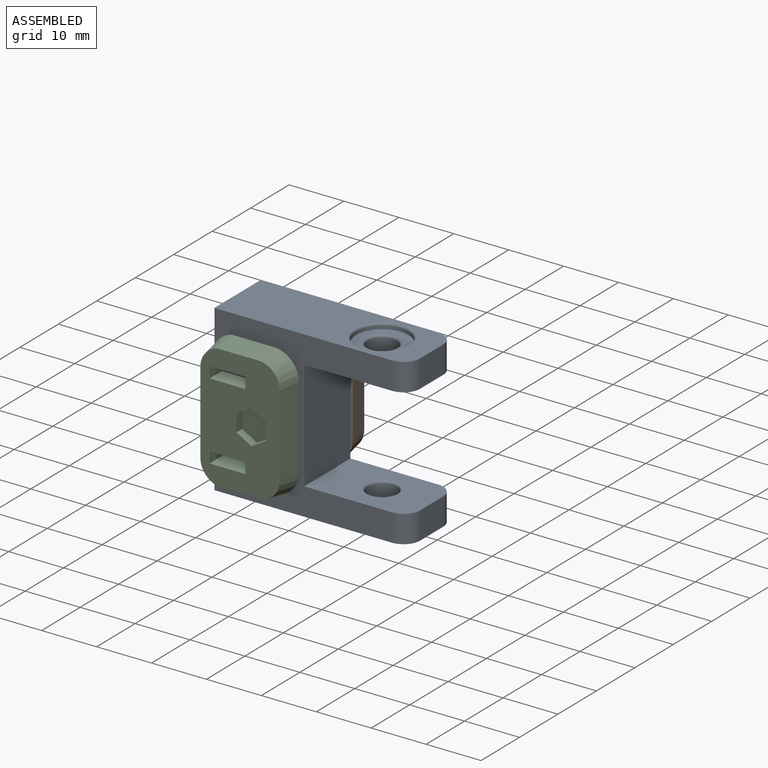
[diagram: assembled view]
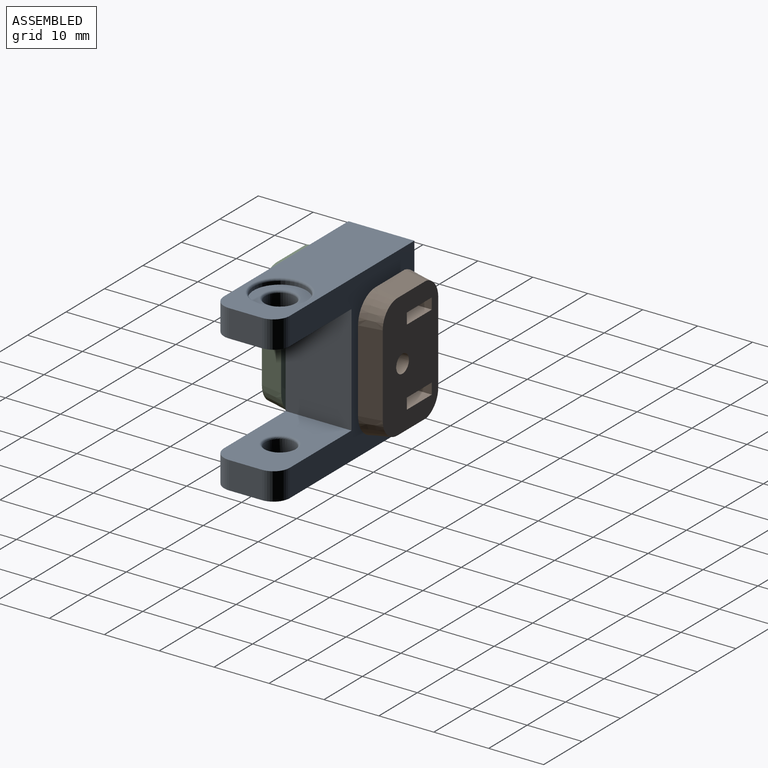
[diagram: assembled view, second angle]
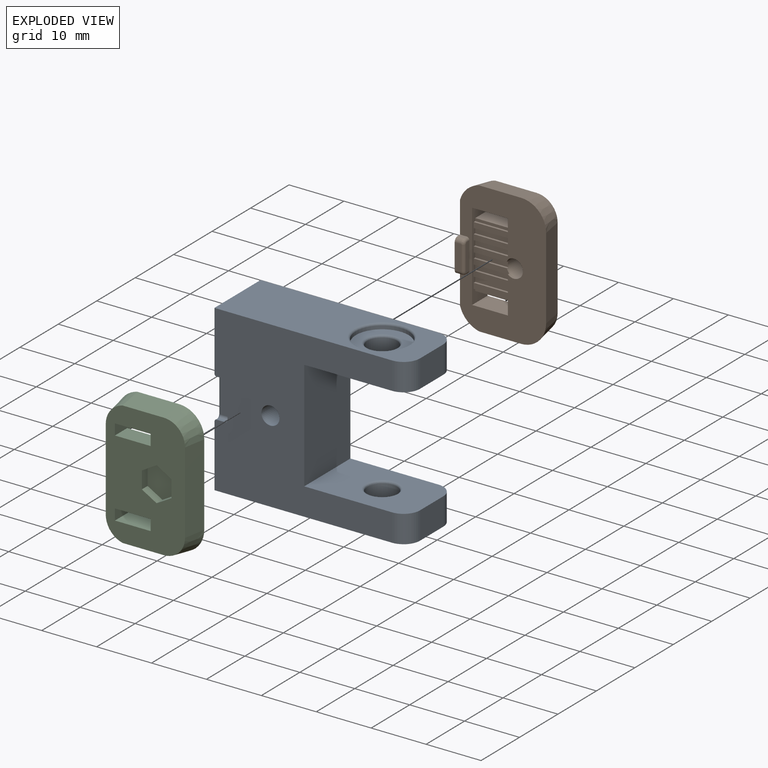
[diagram: exploded view]
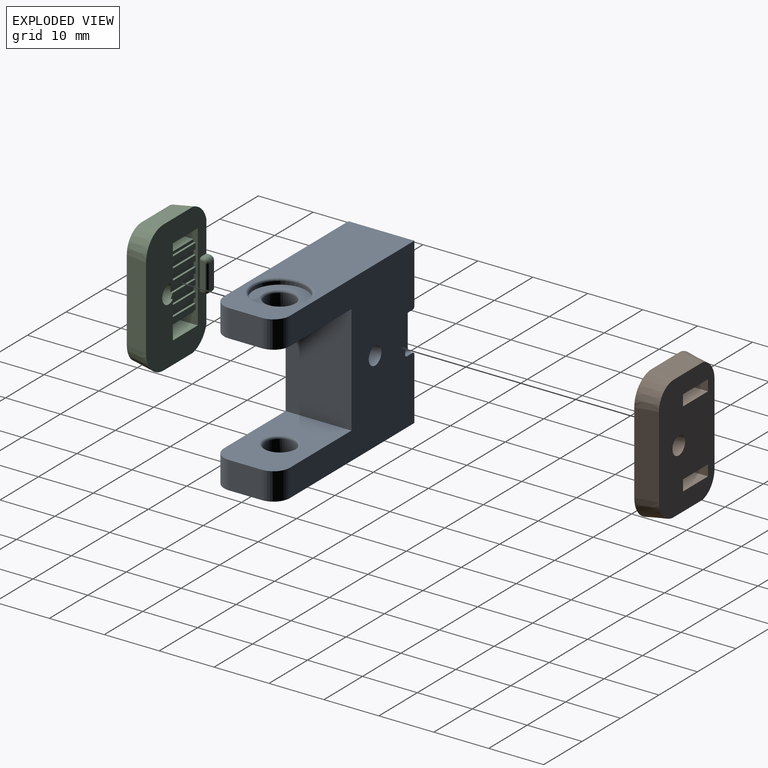
[diagram: exploded view, second angle]
ASSEMBLY  parts=3 mates=2
PART A: 59 faces, bbox 30x35.4x12 mm
  f0: plane 19x12mm, normal (1,0,0), area 193.9mm2, adj f1,f9,f18,f21,f39,f40,f58
  f1: plane 20x12mm, normal (0,-1,0), area 240mm2, adj f0,f3,f21,f40
  f2: plane 35.35x12mm, normal (-1,0,0), area 335.4mm2, adj f7,f12,f18,f21,f39,f40,f58
  f3: plane 19x12mm, normal (-1,0,0), area 193.9mm2, adj f1,f10,f17,f21,f38,f40,f57
  f4: plane 9.6x9.6mm, normal (1,0,0), area 42.2mm2, adj f6,f13
  f5: torus R=5.2mm, axis (-1,0,0), area 19.5mm2, adj f13,f20
  f6: torus R=3.1mm, axis (1,0,0), area 11.2mm2, adj f4,f16
  f7: torus R=5.2mm, axis (1,0,0), area 18.8mm2, adj f2,f15
  f8: torus R=3.1mm, axis (-1,0,0), area 11.2mm2, adj f14,f19
  f9: torus R=3.1mm, axis (-1,0,0), area 11.2mm2, adj f0,f19
  f10: torus R=3.1mm, axis (-1,0,0), area 11.2mm2, adj f3,f16
  f11: cylinder r=1.65mm len=12mm, axis (0,0,1), area 124.4mm2, adj f21,f40
  f12: plane 30x12mm, normal (0,1,0), area 338.6mm2, adj f2,f20,f21,f33,f34,f35,f36,f37
  f13: cylinder r=4.8mm len=9.6mm, axis (-1,0,0), area 18.1mm2, adj f4,f5
  f14: plane 9.6x9.6mm, normal (-1,0,0), area 42.2mm2, adj f8,f15
  f15: cylinder r=4.8mm len=9.6mm, axis (1,0,0), area 18.1mm2, adj f7,f14
  f16: cylinder r=2.7mm len=5.4mm, axis (-1,0,0), area 54.3mm2, adj f6,f10
  f17: plane 6x5mm, normal (0,-1,0), area 30mm2, adj f3,f20,f38,f57
  f18: plane 6x5mm, normal (0,-1,0), area 30mm2, adj f0,f2,f39,f58
  f19: cylinder r=2.7mm len=5.4mm, axis (-1,0,0), area 54.3mm2, adj f8,f9
  f20: plane 35.35x12mm, normal (1,0,0), area 335.4mm2, adj f5,f12,f17,f21,f38,f40,f57
  f21: plane 32.35x30mm, normal (0,0,-1), area 625mm2, adj f0,f1,f2,f3,f11,f12,f20,f23
  f22: plane 6.1x1.5mm, normal (0,0,-1), area 9.1mm2, adj f24,f25,f29,f35
  f23: plane 1.5x0.5mm, normal (1,0,0), area 0.8mm2, adj f21,f25,f28,f33
  f24: cylinder r=0.5mm len=1.5mm, axis (0,1,0), area 1.2mm2, adj f22,f26,f32,f36
  f25: cylinder r=0.5mm len=1.5mm, axis (0,-1,0), area 1.2mm2, adj f22,f23,f31,f34
  f26: plane 1.5x0.5mm, normal (-1,0,0), area 0.8mm2, adj f21,f24,f30,f37
  f27: plane 6.1x0.5mm, normal (0,1,0), area 3mm2, adj f21,f28,f29,f30
  f28: cylinder r=0.5mm len=0.5mm, axis (0,0,1), area 0.4mm2, adj f21,f23,f27,f31
  f29: cylinder r=0.5mm len=6.1mm, axis (1,0,0), area 4.8mm2, adj f22,f27,f31,f32
  f30: cylinder r=0.5mm len=0.5mm, axis (0,0,1), area 0.4mm2, adj f21,f26,f27,f32
  f31: sphere r=0.5mm, area 0.3mm2, adj f25,f28,f29
  f32: sphere r=0.5mm, area 0.5mm2, adj f24,f29,f30
  f33: cylinder r=0.4mm len=0.5mm, axis (0,0,1), area 0.3mm2, adj f12,f21,f23,f34
  f34: torus R=0.9mm, axis (0,-1,0), area 0.6mm2, adj f12,f25,f33,f35
  f35: cylinder r=0.4mm len=6.1mm, axis (1,0,0), area 3.8mm2, adj f12,f22,f34,f36
  f36: torus R=0.9mm, axis (0,-1,0), area 0.6mm2, adj f12,f24,f35,f37
  f37: cylinder r=0.4mm len=0.5mm, axis (0,0,-1), area 0.3mm2, adj f12,f21,f26,f36
  f38: cylinder r=3mm len=5mm, axis (1,0,0), area 23.6mm2, adj f3,f17,f20,f21
  f39: cylinder r=3mm len=5mm, axis (1,0,0), area 23.6mm2, adj f0,f2,f18,f21
  f40: plane 32.35x30mm, normal (0,0,1), area 625mm2, adj f0,f1,f2,f3,f11,f12,f20,f42
  f41: plane 6.1x1.5mm, normal (0,0,1), area 9.1mm2, adj f43,f44,f48,f54
  f42: plane 1.5x0.5mm, normal (1,0,0), area 0.7mm2, adj f40,f44,f47,f52
  f43: cylinder r=0.5mm len=1.5mm, axis (0,1,0), area 1.2mm2, adj f41,f45,f51,f55
  f44: cylinder r=0.5mm len=1.5mm, axis (0,-1,0), area 1.2mm2, adj f41,f42,f50,f53
  f45: plane 1.5x0.5mm, normal (-1,0,0), area 0.8mm2, adj f40,f43,f49,f56
  f46: plane 6.1x0.5mm, normal (0,1,0), area 3mm2, adj f40,f47,f48,f49
  f47: cylinder r=0.5mm len=0.5mm, axis (0,0,-1), area 0.4mm2, adj f40,f42,f46,f50
  f48: cylinder r=0.5mm len=6.1mm, axis (1,0,0), area 4.8mm2, adj f41,f46,f50,f51
  f49: cylinder r=0.5mm len=0.5mm, axis (0,0,-1), area 0.4mm2, adj f40,f45,f46,f51
  f50: sphere r=0.5mm, area 0.2mm2, adj f44,f47,f48
  f51: sphere r=0.5mm, area 0.5mm2, adj f43,f48,f49
  f52: cylinder r=0.4mm len=0.5mm, axis (0,0,-1), area 0.3mm2, adj f12,f40,f42,f53
  f53: torus R=0.9mm, axis (0,-1,0), area 0.6mm2, adj f12,f44,f52,f54
  f54: cylinder r=0.4mm len=6.1mm, axis (1,0,0), area 3.8mm2, adj f12,f41,f53,f55
  f55: torus R=0.9mm, axis (0,-1,0), area 0.6mm2, adj f12,f43,f54,f56
  f56: cylinder r=0.4mm len=0.5mm, axis (0,0,1), area 0.3mm2, adj f12,f40,f45,f55
  f57: cylinder r=3mm len=5mm, axis (1,0,0), area 23.6mm2, adj f3,f17,f20,f40
  f58: cylinder r=3mm len=5mm, axis (1,0,0), area 23.6mm2, adj f0,f2,f18,f40
PART B: 56 faces, bbox 24.1x15.9x5.4 mm
  f0: bspline ~0.75x0.75mm, area 0.7mm2, adj f1,f9,f10,f55
  f1: cylinder r=0.5mm len=4.5mm, axis (-1,0,0), area 3.5mm2, adj f0,f11,f13,f55
  f2: cone r=4.24mm half-angle=10deg, axis (0,0,-1), area 22.7mm2, adj f3,f4,f17,f18,f19,f20
  f3: plane 24.04x15.67mm, normal (0,0,-1), area 238.8mm2, adj f2,f4,f5,f6,f7,f8,f9,f12
  f4: plane 7.61x4mm, normal (-0.98,0,0.17), area 30.7mm2, adj f2,f3,f20,f21
  f5: plane 14.9x4mm, normal (0,0.98,0.17), area 60.5mm2, adj f3,f20,f21,f22
  f6: plane 7.61x4mm, normal (0.98,0,0.17), area 30.7mm2, adj f3,f7,f20,f22
  f7: cone r=4.24mm half-angle=10deg, axis (0,0,-1), area 22.7mm2, adj f3,f6,f17,f18,f19,f20
  f8: plane 6.5x4mm, normal (1,0,0), area 26mm2, adj f3,f20,f51,f53
  f9: cylinder r=0.5mm len=0.65mm, axis (0,0,-1), area 0.5mm2, adj f0,f3,f16,f55
  f10: cylinder r=0.75mm len=1.2mm, axis (0,1,0), area 1.4mm2, adj f0,f13,f16,f18
  f11: bspline ~0.75x0.75mm, area 0.7mm2, adj f1,f12,f14,f55
  f12: cylinder r=0.5mm len=0.65mm, axis (0,0,-1), area 0.5mm2, adj f3,f11,f15,f55
  f13: plane 4.5x1.2mm, normal (0,0,-1), area 5.4mm2, adj f1,f10,f14,f18
  f14: cylinder r=0.75mm len=1.2mm, axis (0,-1,0), area 1.4mm2, adj f11,f13,f15,f18
  f15: plane 1.2x0.65mm, normal (-1,0,0), area 0.8mm2, adj f3,f12,f14,f18
  f16: plane 1.2x0.65mm, normal (1,0,0), area 0.8mm2, adj f3,f9,f10,f18
  f17: cylinder r=5mm len=16.57mm, axis (-1,0,0), area 13.7mm2, adj f2,f7,f18,f19
  f18: plane 17.48x2mm, normal (0,-1,0), area 17.7mm2, adj f2,f3,f7,f10,f13,f14,f15,f16
  f19: plane 14.9x2.57mm, normal (0,-0.98,0.17), area 38.9mm2, adj f2,f7,f17,f20
  f20: plane 22.62x14.44mm, normal (0,0,1), area 279.6mm2, adj f2,f4,f5,f6,f7,f8,f19,f21
  f21: cone r=4.24mm half-angle=10deg, axis (0,0,-1), area 26.9mm2, adj f3,f4,f5,f20
  f22: cone r=4.24mm half-angle=10deg, axis (0,0,-1), area 26.9mm2, adj f3,f5,f6,f20
  f23: plane 6.5x1mm, normal (0,0,-1), area 6.5mm2, adj f29,f37,f38,f51
  f24: plane 6.5x1mm, normal (0,0,-1), area 6.5mm2, adj f25,f26,f38,f51
  f25: plane 6.5x0.4mm, normal (1,0,0), area 2.6mm2, adj f24,f38,f44,f51
  f26: plane 6.5x0.4mm, normal (-1,0,0), area 2.6mm2, adj f24,f38,f46,f51
  f27: plane 6.5x1mm, normal (0,0,-1), area 6.5mm2, adj f28,f29,f38,f51
  f28: plane 6.5x0.4mm, normal (1,0,0), area 2.6mm2, adj f27,f38,f46,f51
  f29: plane 6.5x0.4mm, normal (-1,0,0), area 2.6mm2, adj f23,f27,f38,f51
  f30: plane 6.5x1mm, normal (0,0,-1), area 6.5mm2, adj f31,f32,f51,f53
  f31: plane 6.5x0.4mm, normal (-1,0,0), area 2.6mm2, adj f30,f51,f53,f54
  f32: plane 6.5x0.4mm, normal (1,0,0), area 2.6mm2, adj f30,f45,f51,f53
  f33: plane 6.03x1mm, normal (0,0,-1), area 6mm2, adj f34,f35,f42,f51
  f34: plane 6.03x0.4mm, normal (1,0,0), area 2.4mm2, adj f33,f42,f43,f51
  f35: plane 6.03x0.4mm, normal (-1,0,0), area 2.4mm2, adj f33,f42,f44,f51
  f36: plane 6.5x0.5mm, normal (0,0,-1), area 3.2mm2, adj f37,f38,f48,f51
  f37: plane 6.5x0.4mm, normal (1,0,0), area 2.6mm2, adj f23,f36,f38,f51
  f38: plane 6.77x4mm, normal (0,-1,0), area 10.9mm2, adj f3,f20,f23,f24,f25,f26,f27,f28
  f39: plane 6.5x1mm, normal (0,0,-1), area 6.5mm2, adj f40,f51,f52,f53
  f40: plane 6.5x0.4mm, normal (-1,0,0), area 2.6mm2, adj f39,f43,f51,f53
  f41: plane 6.5x4mm, normal (-1,0,0), area 26mm2, adj f3,f20,f38,f51
  f42: cylinder r=1.65mm len=4mm, axis (0,0,-1), area 40mm2, adj f3,f20,f33,f34,f35,f38,f43,f44
  f43: plane 6.5x1mm, normal (0,0,-1), area 6.3mm2, adj f34,f40,f42,f51,f53
  f44: plane 6.5x1mm, normal (0,0,-1), area 6.3mm2, adj f25,f35,f38,f42,f51
  f45: plane 6.5x1mm, normal (0,0,-1), area 6.5mm2, adj f32,f50,f51,f53
  f46: plane 6.5x1mm, normal (0,0,-1), area 6.5mm2, adj f26,f28,f38,f51
  f47: plane 6.5x3.2mm, normal (-1,0,0), area 20.8mm2, adj f20,f49,f51,f53
  f48: plane 6.5x3.2mm, normal (1,0,0), area 20.8mm2, adj f20,f36,f38,f51
  f49: plane 6.5x0.5mm, normal (0,0,-1), area 3.2mm2, adj f47,f50,f51,f53
  f50: plane 6.5x0.4mm, normal (-1,0,0), area 2.6mm2, adj f45,f49,f51,f53
  f51: plane 16x4mm, normal (0,1,0), area 23.2mm2, adj f3,f8,f20,f23,f24,f25,f26,f27
  f52: plane 6.5x0.4mm, normal (1,0,0), area 2.6mm2, adj f39,f51,f53,f54
  f53: plane 6.77x4mm, normal (0,-1,0), area 10.9mm2, adj f3,f8,f20,f30,f31,f32,f39,f40
  f54: plane 6.5x1mm, normal (0,0,-1), area 6.5mm2, adj f31,f51,f52,f53
  f55: plane 5x0.9mm, normal (0,1,0), area 4.5mm2, adj f0,f1,f3,f9,f11,f12
PART C: 64 faces, bbox 24.1x15.9x5.4 mm
  f0: cylinder r=0.5mm len=0.65mm, axis (0,0,-1), area 0.5mm2, adj f1,f3,f31,f63
  f1: bspline ~0.75x0.75mm, area 0.7mm2, adj f0,f2,f30,f31
  f2: cylinder r=0.75mm len=1.2mm, axis (0,-1,0), area 1.4mm2, adj f1,f3,f9,f25
  f3: plane 1.2x0.65mm, normal (1,0,0), area 0.8mm2, adj f0,f2,f25,f63
  f4: cylinder r=0.75mm len=1.2mm, axis (0,1,0), area 1.4mm2, adj f9,f25,f27,f29
  f5: plane 6.5x4mm, normal (1,0,0), area 26mm2, adj f24,f33,f61,f63
  f6: cone r=4.24mm half-angle=10deg, axis (0,0,-1), area 22.7mm2, adj f10,f24,f25,f26,f62,f63
  f7: plane 7.61x4mm, normal (-0.98,0,0.17), area 30.7mm2, adj f8,f24,f35,f63
  f8: cone r=4.24mm half-angle=10deg, axis (0,0,-1), area 22.7mm2, adj f7,f10,f24,f25,f26,f63
  f9: plane 4.5x1.2mm, normal (0,0,-1), area 5.4mm2, adj f2,f4,f25,f30
  f10: plane 14.9x2.57mm, normal (0,0.98,0.17), area 38.9mm2, adj f6,f8,f24,f26
  f11: plane 3.12x1.5mm, normal (0,-1,0), area 4.7mm2, adj f12,f16,f17,f24
  f12: plane 2.7x1.56mm, normal (0.87,-0.5,0), area 4.7mm2, adj f11,f13,f17,f24
  f13: plane 2.7x1.56mm, normal (0.87,0.5,0), area 4.7mm2, adj f12,f14,f17,f24
  f14: plane 3.12x1.5mm, normal (0,1,0), area 4.7mm2, adj f13,f15,f17,f24
  f15: plane 2.7x1.56mm, normal (-0.87,0.5,0), area 4.7mm2, adj f14,f16,f17,f24
  f16: plane 2.7x1.56mm, normal (-0.87,-0.5,0), area 4.7mm2, adj f11,f15,f17,f24
  f17: plane 6.24x5.4mm, normal (0,0,1), area 25.3mm2, adj f11,f12,f13,f14,f15,f16
  f18: plane 3.3x3.3mm, normal (0,0,-1), area 8.6mm2, adj f19
  f19: cylinder r=1.65mm len=3.3mm, axis (0,0,-1), area 23.4mm2, adj f18,f33,f47,f48,f49,f51,f54,f55
  f20: plane 6.5x0.4mm, normal (-1,0,0), area 2.6mm2, adj f33,f56,f60,f61
  f21: plane 6.5x0.5mm, normal (0,0,-1), area 3.2mm2, adj f50,f51,f59,f61
  f22: plane 6.5x0.4mm, normal (1,0,0), area 2.6mm2, adj f39,f51,f55,f61
  f23: plane 6.5x4mm, normal (-1,0,0), area 26mm2, adj f24,f51,f61,f63
  f24: plane 22.62x14.44mm, normal (0,0,1), area 262.9mm2, adj f5,f6,f7,f8,f10,f11,f12,f13
  f25: plane 17.48x2mm, normal (0,1,0), area 17.7mm2, adj f2,f3,f4,f6,f8,f9,f26,f27
  f26: cylinder r=5mm len=16.57mm, axis (-1,0,0), area 13.7mm2, adj f6,f8,f10,f25
  f27: plane 1.2x0.65mm, normal (-1,0,0), area 0.8mm2, adj f4,f25,f28,f63
  f28: cylinder r=0.5mm len=0.65mm, axis (0,0,-1), area 0.5mm2, adj f27,f29,f31,f63
  f29: bspline ~0.75x0.75mm, area 0.7mm2, adj f4,f28,f30,f31
  f30: cylinder r=0.5mm len=4.5mm, axis (-1,0,0), area 3.5mm2, adj f1,f9,f29,f31
  f31: plane 5x0.9mm, normal (0,-1,0), area 4.5mm2, adj f0,f1,f28,f29,f30,f63
  f32: plane 6.5x1mm, normal (0,0,-1), area 6.5mm2, adj f33,f34,f45,f61
  f33: plane 6.77x4mm, normal (0,1,0), area 10.9mm2, adj f5,f19,f20,f24,f32,f34,f44,f45
  f34: plane 6.5x0.4mm, normal (1,0,0), area 2.6mm2, adj f32,f33,f52,f61
  f35: cone r=4.24mm half-angle=10deg, axis (0,0,-1), area 26.9mm2, adj f7,f24,f36,f63
  f36: plane 14.9x4mm, normal (0,-0.98,0.17), area 60.5mm2, adj f24,f35,f37,f63
  f37: cone r=4.24mm half-angle=10deg, axis (0,0,-1), area 26.9mm2, adj f24,f36,f62,f63
  f38: plane 6.5x1mm, normal (0,0,-1), area 6.5mm2, adj f43,f50,f51,f61
  f39: plane 6.5x1mm, normal (0,0,-1), area 6.5mm2, adj f22,f40,f51,f61
  f40: plane 6.5x0.4mm, normal (-1,0,0), area 2.6mm2, adj f39,f51,f57,f61
  f41: plane 6.5x1mm, normal (0,0,-1), area 6.5mm2, adj f42,f43,f51,f61
  f42: plane 6.5x0.4mm, normal (1,0,0), area 2.6mm2, adj f41,f51,f57,f61
  f43: plane 6.5x0.4mm, normal (-1,0,0), area 2.6mm2, adj f38,f41,f51,f61
  f44: plane 6.5x1mm, normal (0,0,-1), area 6.5mm2, adj f33,f45,f46,f61
  f45: plane 6.5x0.4mm, normal (-1,0,0), area 2.6mm2, adj f32,f33,f44,f61
  f46: plane 6.5x0.4mm, normal (1,0,0), area 2.6mm2, adj f33,f44,f56,f61
  f47: plane 6.03x1mm, normal (0,0,-1), area 6mm2, adj f19,f48,f49,f61
  f48: plane 6.03x0.4mm, normal (1,0,0), area 2.4mm2, adj f19,f47,f54,f61
  f49: plane 6.03x0.4mm, normal (-1,0,0), area 2.4mm2, adj f19,f47,f55,f61
  f50: plane 6.5x0.4mm, normal (1,0,0), area 2.6mm2, adj f21,f38,f51,f61
  f51: plane 6.77x4mm, normal (0,1,0), area 10.9mm2, adj f19,f21,f22,f23,f24,f38,f39,f40
  f52: plane 6.5x1mm, normal (0,0,-1), area 6.5mm2, adj f33,f34,f53,f61
  f53: plane 6.5x0.4mm, normal (-1,0,0), area 2.6mm2, adj f33,f52,f54,f61
  f54: plane 6.5x1mm, normal (0,0,-1), area 6.3mm2, adj f19,f33,f48,f53,f61
  f55: plane 6.5x1mm, normal (0,0,-1), area 6.3mm2, adj f19,f22,f49,f51,f61
  f56: plane 6.5x1mm, normal (0,0,-1), area 6.5mm2, adj f20,f33,f46,f61
  f57: plane 6.5x1mm, normal (0,0,-1), area 6.5mm2, adj f40,f42,f51,f61
  f58: plane 6.5x3.2mm, normal (-1,0,0), area 20.8mm2, adj f24,f33,f60,f61
  f59: plane 6.5x3.2mm, normal (1,0,0), area 20.8mm2, adj f21,f24,f51,f61
  f60: plane 6.5x0.5mm, normal (0,0,-1), area 3.2mm2, adj f20,f33,f58,f61
  f61: plane 16x4mm, normal (0,-1,0), area 23.2mm2, adj f5,f20,f21,f22,f23,f24,f32,f34
  f62: plane 7.61x4mm, normal (0.98,0,0.17), area 30.7mm2, adj f6,f24,f37,f63
  f63: plane 24.04x15.67mm, normal (0,0,-1), area 238.8mm2, adj f0,f3,f5,f6,f7,f8,f19,f23
PLACE A rot(axis=(0.58,-0.58,0.58),120deg) t=(-6.15,-44.1,-25)mm
PLACE B rot(axis=(-0.58,-0.58,-0.58),120deg) t=(-20.24,-15.5,0)mm
PLACE C rot(axis=(0.58,-0.58,0.58),120deg) t=(-20.24,15.5,0)mm
MATE fastened C.f19 <-> A.f11  axis (0,1,0) through (-6.15,-7,0)mm
MATE fastened B.f42 <-> A.f11  axis (0,-1,0) through (-6.15,7,0)mm
